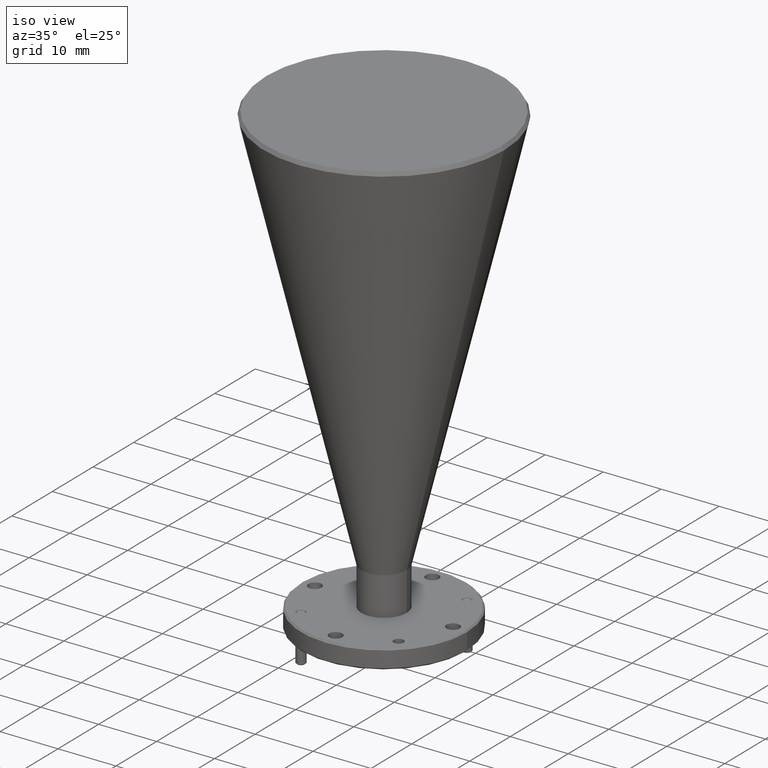
[diagram: clean part render]
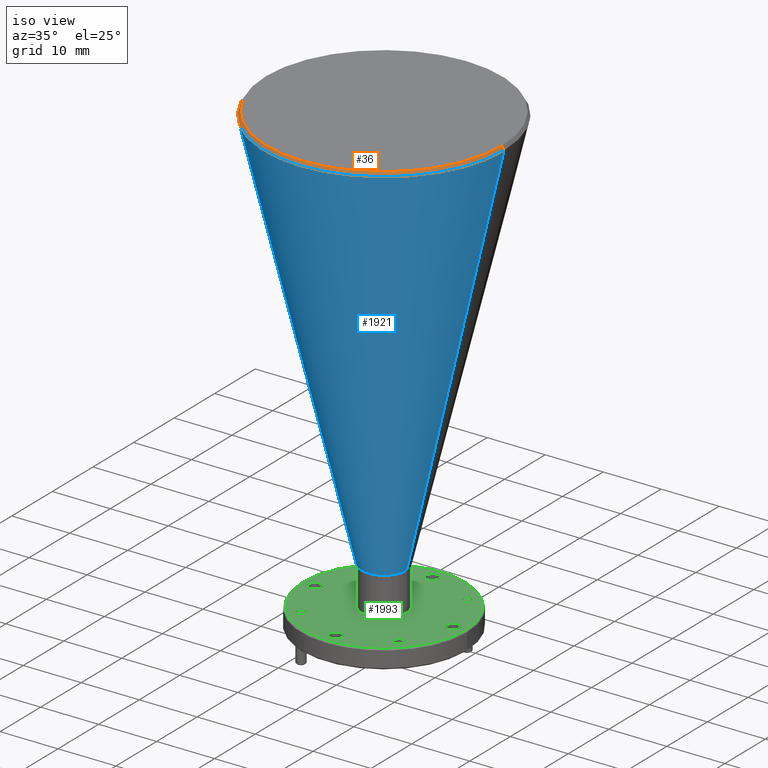
[diagram: same view with three faces highlighted in distinct colors, each labeled with its STEP entity id]
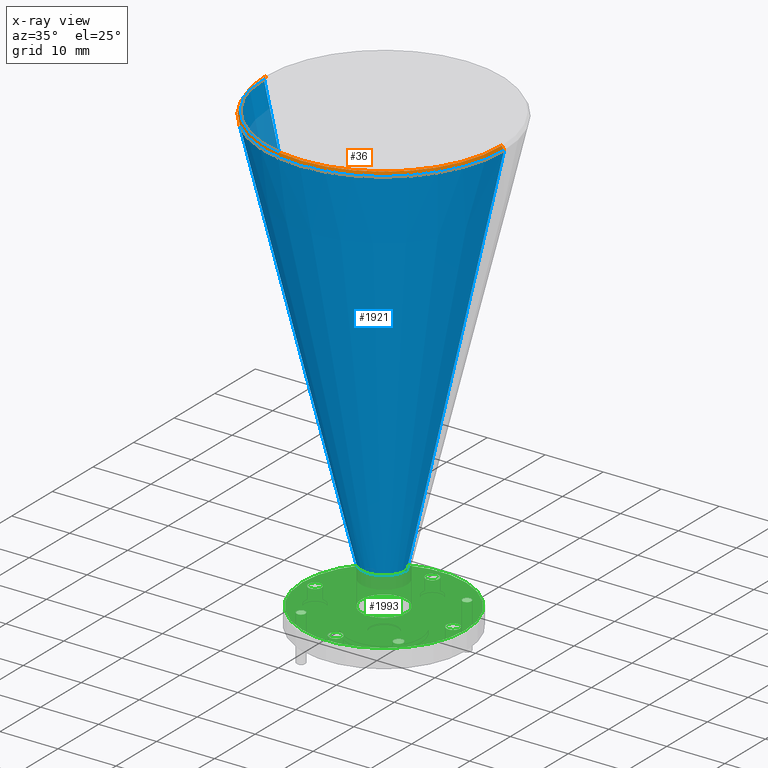
[diagram: x-ray of the same camera — body ghosted, the three highlighted faces saturated]
A machine part, iso view with three faces highlighted in distinct colors.
The next image is the same camera in x-ray (body ghosted, the three faces saturated) — at least one of them is partly hidden behind the body in this view.
Their STEP definitions:

[orange] entity #36 — the highlighted conical surface has half-angle 31.5 deg.
#17 = CARTESIAN_POINT ( 'NONE',  ( 1.289985497643306100, 1.133992482487602400, 3.175826876067312300 ) ) ;
#36 = ADVANCED_FACE ( 'NONE', ( #421 ), #1290, .T. ) ;
#39 = CARTESIAN_POINT ( 'NONE',  ( 1.275088771303725100, 1.133992482487602600, 3.200136124077253900 ) ) ;
#49 = VECTOR ( 'NONE', #1797, 39.37007874015748100 ) ;
#67 = EDGE_CURVE ( 'NONE', #1133, #147, #1218, .T. ) ;
#147 = VERTEX_POINT ( 'NONE', #1995 ) ;
#296 = ORIENTED_EDGE ( 'NONE', *, *, #67, .F. ) ;
#421 = FACE_OUTER_BOUND ( 'NONE', #435, .T. ) ;
#435 = EDGE_LOOP ( 'NONE', ( #608, #296, #511, #1625 ) ) ;
#511 = ORIENTED_EDGE ( 'NONE', *, *, #1276, .T. ) ;
#568 = CARTESIAN_POINT ( 'NONE',  ( -0.3254455078243183000, 1.133992482487602400, 3.200136124077253900 ) ) ;
#580 = AXIS2_PLACEMENT_3D ( 'NONE', #1400, #765, #1230 ) ;
#608 = ORIENTED_EDGE ( 'NONE', *, *, #758, .F. ) ;
#713 = LINE ( 'NONE', #39, #1470 ) ;
#758 = EDGE_CURVE ( 'NONE', #147, #1784, #713, .T. ) ;
#765 = DIRECTION ( 'NONE',  ( -0.0000000000000000000, -0.0000000000000000000, 1.000000000000000000 ) ) ;
#772 = CARTESIAN_POINT ( 'NONE',  ( 0.4748216317397033800, 1.133992482487602400, 3.175826876067312300 ) ) ;
#1129 = CARTESIAN_POINT ( 'NONE',  ( -0.3254455078243183000, 1.133992482487602400, 3.200136124077253900 ) ) ;
#1133 = VERTEX_POINT ( 'NONE', #568 ) ;
#1218 = CIRCLE ( 'NONE', #580, 0.8002671395640217300 ) ;
#1230 = DIRECTION ( 'NONE',  ( -1.000000000000000000, 0.0000000000000000000, 0.0000000000000000000 ) ) ;
#1276 = EDGE_CURVE ( 'NONE', #1133, #1287, #1577, .T. ) ;
#1281 = CARTESIAN_POINT ( 'NONE',  ( -0.3403422341638994200, 1.133992482487602600, 3.175826876067312300 ) ) ;
#1287 = VERTEX_POINT ( 'NONE', #1281 ) ;
#1290 = CONICAL_SURFACE ( 'NONE', #1816, 0.8002671395640217300, 0.5497787143782190100 ) ;
#1400 = CARTESIAN_POINT ( 'NONE',  ( 0.4748216317397033800, 1.133992482487602400, 3.200136124077253900 ) ) ;
#1409 = CIRCLE ( 'NONE', #1982, 0.8151638659036026800 ) ;
#1470 = VECTOR ( 'NONE', #1987, 39.37007874015748100 ) ;
#1548 = DIRECTION ( 'NONE',  ( -1.000000000000000000, 0.0000000000000000000, 0.0000000000000000000 ) ) ;
#1577 = LINE ( 'NONE', #1129, #49 ) ;
#1625 = ORIENTED_EDGE ( 'NONE', *, *, #1952, .F. ) ;
#1709 = CARTESIAN_POINT ( 'NONE',  ( 0.4748216317397033800, 1.133992482487602400, 3.200136124077253900 ) ) ;
#1784 = VERTEX_POINT ( 'NONE', #17 ) ;
#1797 = DIRECTION ( 'NONE',  ( -0.5224985647159533500, 0.0000000000000000000, -0.8526401643540895100 ) ) ;
#1816 = AXIS2_PLACEMENT_3D ( 'NONE', #1709, #2024, #1548 ) ;
#1894 = DIRECTION ( 'NONE',  ( -1.000000000000000000, 0.0000000000000000000, 0.0000000000000000000 ) ) ;
#1952 = EDGE_CURVE ( 'NONE', #1784, #1287, #1409, .T. ) ;
#1982 = AXIS2_PLACEMENT_3D ( 'NONE', #772, #2070, #1894 ) ;
#1987 = DIRECTION ( 'NONE',  ( 0.5224985647159533500, 6.398761948384784400E-017, -0.8526401643540895100 ) ) ;
#1995 = CARTESIAN_POINT ( 'NONE',  ( 1.275088771303725100, 1.133992482487602600, 3.200136124077253900 ) ) ;
#2024 = DIRECTION ( 'NONE',  ( 0.0000000000000000000, 0.0000000000000000000, -1.000000000000000000 ) ) ;
#2070 = DIRECTION ( 'NONE',  ( 0.0000000000000000000, 0.0000000000000000000, -1.000000000000000000 ) ) ;

[blue] entity #1921 — the highlighted conical surface has half-angle 13.5 deg.
#9 = CARTESIAN_POINT ( 'NONE',  ( 0.6288216317397034000, 1.133992482487602400, 0.4218811774268598800 ) ) ;
#17 = CARTESIAN_POINT ( 'NONE',  ( 1.289985497643306100, 1.133992482487602400, 3.175826876067312300 ) ) ;
#142 = VERTEX_POINT ( 'NONE', #997 ) ;
#178 = VECTOR ( 'NONE', #1915, 39.37007874015748100 ) ;
#237 = CARTESIAN_POINT ( 'NONE',  ( 0.4748216317397033800, 1.133992482487602400, 0.4218811774268598800 ) ) ;
#314 = CARTESIAN_POINT ( 'NONE',  ( 0.3208216317397033500, 1.133992482487602400, 0.4218811774268598800 ) ) ;
#446 = VERTEX_POINT ( 'NONE', #1148 ) ;
#462 = CIRCLE ( 'NONE', #1802, 0.1540000000000000500 ) ;
#529 = DIRECTION ( 'NONE',  ( 1.000000000000000000, 0.0000000000000000000, 0.0000000000000000000 ) ) ;
#540 = CARTESIAN_POINT ( 'NONE',  ( 0.4748216317397033800, 1.133992482487602400, 0.4218811774268598800 ) ) ;
#610 = FACE_OUTER_BOUND ( 'NONE', #1800, .T. ) ;
#772 = CARTESIAN_POINT ( 'NONE',  ( 0.4748216317397033800, 1.133992482487602400, 3.175826876067312300 ) ) ;
#793 = DIRECTION ( 'NONE',  ( -0.2334453638558986200, 2.858881176219154500E-017, 0.9723699203976782200 ) ) ;
#856 = LINE ( 'NONE', #9, #178 ) ;
#873 = ORIENTED_EDGE ( 'NONE', *, *, #1291, .T. ) ;
#876 = DIRECTION ( 'NONE',  ( -0.0000000000000000000, -0.0000000000000000000, 1.000000000000000000 ) ) ;
#971 = VECTOR ( 'NONE', #793, 39.37007874015748100 ) ;
#997 = CARTESIAN_POINT ( 'NONE',  ( 0.3208216317397033500, 1.133992482487602400, 0.4218811774268598800 ) ) ;
#1148 = CARTESIAN_POINT ( 'NONE',  ( 0.6288216317397034000, 1.133992482487602400, 0.4218811774268598800 ) ) ;
#1271 = ORIENTED_EDGE ( 'NONE', *, *, #1952, .T. ) ;
#1281 = CARTESIAN_POINT ( 'NONE',  ( -0.3403422341638994200, 1.133992482487602600, 3.175826876067312300 ) ) ;
#1287 = VERTEX_POINT ( 'NONE', #1281 ) ;
#1291 = EDGE_CURVE ( 'NONE', #446, #1784, #856, .T. ) ;
#1375 = DIRECTION ( 'NONE',  ( 1.000000000000000000, 0.0000000000000000000, 0.0000000000000000000 ) ) ;
#1409 = CIRCLE ( 'NONE', #1982, 0.8151638659036026800 ) ;
#1605 = ORIENTED_EDGE ( 'NONE', *, *, #2088, .F. ) ;
#1654 = DIRECTION ( 'NONE',  ( -0.0000000000000000000, -0.0000000000000000000, 1.000000000000000000 ) ) ;
#1676 = LINE ( 'NONE', #314, #971 ) ;
#1761 = EDGE_CURVE ( 'NONE', #142, #446, #462, .T. ) ;
#1784 = VERTEX_POINT ( 'NONE', #17 ) ;
#1800 = EDGE_LOOP ( 'NONE', ( #1605, #1844, #873, #1271 ) ) ;
#1802 = AXIS2_PLACEMENT_3D ( 'NONE', #540, #1654, #529 ) ;
#1844 = ORIENTED_EDGE ( 'NONE', *, *, #1761, .T. ) ;
#1894 = DIRECTION ( 'NONE',  ( -1.000000000000000000, 0.0000000000000000000, 0.0000000000000000000 ) ) ;
#1915 = DIRECTION ( 'NONE',  ( 0.2334453638558986200, 0.0000000000000000000, 0.9723699203976782200 ) ) ;
#1921 = ADVANCED_FACE ( 'NONE', ( #610 ), #1966, .T. ) ;
#1952 = EDGE_CURVE ( 'NONE', #1784, #1287, #1409, .T. ) ;
#1964 = AXIS2_PLACEMENT_3D ( 'NONE', #237, #876, #1375 ) ;
#1966 = CONICAL_SURFACE ( 'NONE', #1964, 0.1540000000000000500, 0.2356194490192275200 ) ;
#1982 = AXIS2_PLACEMENT_3D ( 'NONE', #772, #2070, #1894 ) ;
#2070 = DIRECTION ( 'NONE',  ( 0.0000000000000000000, 0.0000000000000000000, -1.000000000000000000 ) ) ;
#2088 = EDGE_CURVE ( 'NONE', #142, #1287, #1676, .T. ) ;

[green] entity #1993 — the highlighted planar face has unit normal (0, 0, -1).
#1 = CARTESIAN_POINT ( 'NONE',  ( 0.1098653280585092900, 1.465448786168796800, 0.1601361240772534200 ) ) ;
#2 = EDGE_LOOP ( 'NONE', ( #513, #1809 ) ) ;
#7 = CIRCLE ( 'NONE', #616, 0.02974999999999997100 ) ;
#8 = VERTEX_POINT ( 'NONE', #1863 ) ;
#12 = EDGE_LOOP ( 'NONE', ( #1984, #42 ) ) ;
#27 = CARTESIAN_POINT ( 'NONE',  ( 0.8990716317397036100, 1.133992482487602400, 0.1601361240772534200 ) ) ;
#31 = VERTEX_POINT ( 'NONE', #93 ) ;
#33 = DIRECTION ( 'NONE',  ( -1.000000000000000000, 0.0000000000000000000, 0.0000000000000000000 ) ) ;
#34 = VERTEX_POINT ( 'NONE', #556 ) ;
#42 = ORIENTED_EDGE ( 'NONE', *, *, #1063, .T. ) ;
#50 = CARTESIAN_POINT ( 'NONE',  ( 0.8062779354208975400, 0.8025361788064083700, 0.1601361240772534200 ) ) ;
#87 = EDGE_CURVE ( 'NONE', #767, #118, #1039, .T. ) ;
#93 = CARTESIAN_POINT ( 'NONE',  ( -0.07767836826029517200, 1.133992482487602400, 0.1601361240772534200 ) ) ;
#97 = EDGE_CURVE ( 'NONE', #1241, #188, #1958, .T. ) ;
#106 = DIRECTION ( 'NONE',  ( 0.0000000000000000000, 0.0000000000000000000, -1.000000000000000000 ) ) ;
#118 = VERTEX_POINT ( 'NONE', #494 ) ;
#132 = EDGE_CURVE ( 'NONE', #118, #767, #246, .T. ) ;
#135 = FACE_BOUND ( 'NONE', #12, .T. ) ;
#136 = AXIS2_PLACEMENT_3D ( 'NONE', #694, #817, #349 ) ;
#146 = CARTESIAN_POINT ( 'NONE',  ( 0.05057163173970308200, 1.133992482487602400, 0.1601361240772534200 ) ) ;
#152 = AXIS2_PLACEMENT_3D ( 'NONE', #735, #1718, #2023 ) ;
#182 = DIRECTION ( 'NONE',  ( -1.000000000000000000, 0.0000000000000000000, 0.0000000000000000000 ) ) ;
#185 = DIRECTION ( 'NONE',  ( -1.000000000000000000, 0.0000000000000000000, 0.0000000000000000000 ) ) ;
#188 = VERTEX_POINT ( 'NONE', #1387 ) ;
#189 = FACE_BOUND ( 'NONE', #1036, .T. ) ;
#217 = DIRECTION ( 'NONE',  ( -1.000000000000000000, 0.0000000000000000000, 0.0000000000000000000 ) ) ;
#229 = CIRCLE ( 'NONE', #1465, 0.02975000000000000200 ) ;
#246 = CIRCLE ( 'NONE', #675, 0.04449999999999975500 ) ;
#269 = DIRECTION ( 'NONE',  ( -1.000000000000000000, 0.0000000000000000000, 0.0000000000000000000 ) ) ;
#279 = CARTESIAN_POINT ( 'NONE',  ( 0.4748216317397033800, 1.602742482487602400, 0.1601361240772534200 ) ) ;
#299 = CARTESIAN_POINT ( 'NONE',  ( 0.4748216317397033800, 0.6652424824876024300, 0.1601361240772534200 ) ) ;
#300 = EDGE_CURVE ( 'NONE', #1032, #8, #7, .T. ) ;
#316 = EDGE_LOOP ( 'NONE', ( #1481, #1419 ) ) ;
#332 = FACE_BOUND ( 'NONE', #924, .T. ) ;
#340 = VERTEX_POINT ( 'NONE', #1087 ) ;
#349 = DIRECTION ( 'NONE',  ( -1.000000000000000000, 0.0000000000000000000, 0.0000000000000000000 ) ) ;
#352 = AXIS2_PLACEMENT_3D ( 'NONE', #869, #718, #1869 ) ;
#363 = EDGE_LOOP ( 'NONE', ( #1390, #1117 ) ) ;
#369 = EDGE_CURVE ( 'NONE', #340, #1384, #1388, .T. ) ;
#378 = FACE_BOUND ( 'NONE', #363, .T. ) ;
#389 = DIRECTION ( 'NONE',  ( -1.000000000000000000, 0.0000000000000000000, 0.0000000000000000000 ) ) ;
#409 = CIRCLE ( 'NONE', #1669, 0.03349999999999996000 ) ;
#434 = CIRCLE ( 'NONE', #136, 0.04449999999999972000 ) ;
#444 = AXIS2_PLACEMENT_3D ( 'NONE', #1851, #555, #2011 ) ;
#448 = CARTESIAN_POINT ( 'NONE',  ( 0.4303216317397036100, 1.602742482487602400, 0.1601361240772534200 ) ) ;
#458 = AXIS2_PLACEMENT_3D ( 'NONE', #299, #1745, #921 ) ;
#477 = DIRECTION ( 'NONE',  ( 0.0000000000000000000, 0.0000000000000000000, -1.000000000000000000 ) ) ;
#484 = CIRCLE ( 'NONE', #1623, 0.5524999999999985500 ) ;
#493 = DIRECTION ( 'NONE',  ( -0.0000000000000000000, -0.0000000000000000000, 1.000000000000000000 ) ) ;
#494 = CARTESIAN_POINT ( 'NONE',  ( 0.9880716317397031400, 1.133992482487602400, 0.1601361240772534200 ) ) ;
#507 = CARTESIAN_POINT ( 'NONE',  ( 0.3208216317397034100, 1.133992482487602400, 0.1601361240772534200 ) ) ;
#513 = ORIENTED_EDGE ( 'NONE', *, *, #1746, .T. ) ;
#522 = CARTESIAN_POINT ( 'NONE',  ( 0.8062779354208975400, 1.465448786168796400, 0.1601361240772534200 ) ) ;
#531 = EDGE_CURVE ( 'NONE', #1384, #340, #1931, .T. ) ;
#549 = AXIS2_PLACEMENT_3D ( 'NONE', #1946, #652, #820 ) ;
#555 = DIRECTION ( 'NONE',  ( -0.0000000000000000000, -0.0000000000000000000, 1.000000000000000000 ) ) ;
#556 = CARTESIAN_POINT ( 'NONE',  ( 1.027321631739701800, 1.133992482487602400, 0.1601361240772534200 ) ) ;
#562 = CIRCLE ( 'NONE', #444, 0.1540000000000000500 ) ;
#589 = CIRCLE ( 'NONE', #549, 0.04449999999999975500 ) ;
#604 = DIRECTION ( 'NONE',  ( 0.0000000000000000000, 0.0000000000000000000, -1.000000000000000000 ) ) ;
#616 = AXIS2_PLACEMENT_3D ( 'NONE', #879, #1708, #1887 ) ;
#622 = EDGE_LOOP ( 'NONE', ( #837, #1372 ) ) ;
#647 = CARTESIAN_POINT ( 'NONE',  ( 0.4748216317397033800, 1.133992482487602400, 0.1601361240772534200 ) ) ;
#652 = DIRECTION ( 'NONE',  ( 0.0000000000000000000, 0.0000000000000000000, -1.000000000000000000 ) ) ;
#653 = VERTEX_POINT ( 'NONE', #912 ) ;
#675 = AXIS2_PLACEMENT_3D ( 'NONE', #1146, #1309, #1482 ) ;
#693 = ORIENTED_EDGE ( 'NONE', *, *, #1504, .T. ) ;
#694 = CARTESIAN_POINT ( 'NONE',  ( 0.006071631739703355900, 1.133992482487602400, 0.1601361240772534200 ) ) ;
#696 = CARTESIAN_POINT ( 'NONE',  ( 0.5193216317397031400, 0.6652424824876024300, 0.1601361240772534200 ) ) ;
#712 = DIRECTION ( 'NONE',  ( 0.0000000000000000000, 0.0000000000000000000, -1.000000000000000000 ) ) ;
#718 = DIRECTION ( 'NONE',  ( -0.0000000000000000000, -0.0000000000000000000, 1.000000000000000000 ) ) ;
#729 = CARTESIAN_POINT ( 'NONE',  ( 0.1433653280585092700, 0.8025361788064084800, 0.1601361240772534200 ) ) ;
#733 = FACE_BOUND ( 'NONE', #2, .T. ) ;
#735 = CARTESIAN_POINT ( 'NONE',  ( 0.006071631739703355900, 1.133992482487602400, 0.1601361240772534200 ) ) ;
#739 = VERTEX_POINT ( 'NONE', #696 ) ;
#748 = CARTESIAN_POINT ( 'NONE',  ( 0.4748216317397033800, 1.602742482487602400, 0.1601361240772534200 ) ) ;
#760 = CARTESIAN_POINT ( 'NONE',  ( 0.8360279354208974800, 1.465448786168796400, 0.1601361240772534200 ) ) ;
#767 = VERTEX_POINT ( 'NONE', #27 ) ;
#770 = CARTESIAN_POINT ( 'NONE',  ( 0.4748216317397033800, 1.133992482487602400, 0.1601361240772534200 ) ) ;
#783 = AXIS2_PLACEMENT_3D ( 'NONE', #1571, #915, #1077 ) ;
#785 = AXIS2_PLACEMENT_3D ( 'NONE', #50, #991, #33 ) ;
#805 = EDGE_CURVE ( 'NONE', #1961, #1018, #1706, .T. ) ;
#817 = DIRECTION ( 'NONE',  ( 0.0000000000000000000, 0.0000000000000000000, -1.000000000000000000 ) ) ;
#820 = DIRECTION ( 'NONE',  ( -1.000000000000000000, 0.0000000000000000000, 0.0000000000000000000 ) ) ;
#822 = DIRECTION ( 'NONE',  ( -1.000000000000000000, 0.0000000000000000000, 0.0000000000000000000 ) ) ;
#832 = AXIS2_PLACEMENT_3D ( 'NONE', #2066, #477, #1257 ) ;
#837 = ORIENTED_EDGE ( 'NONE', *, *, #1167, .T. ) ;
#845 = CARTESIAN_POINT ( 'NONE',  ( -0.03842836826029636500, 1.133992482487602400, 0.1601361240772534200 ) ) ;
#851 = CIRCLE ( 'NONE', #878, 0.03349999999999993300 ) ;
#858 = EDGE_LOOP ( 'NONE', ( #1684, #1037 ) ) ;
#869 = CARTESIAN_POINT ( 'NONE',  ( 0.4748216317397033800, 1.133992482487602400, 0.1601361240772534200 ) ) ;
#874 = EDGE_CURVE ( 'NONE', #1766, #2057, #1950, .T. ) ;
#878 = AXIS2_PLACEMENT_3D ( 'NONE', #1506, #1301, #822 ) ;
#879 = CARTESIAN_POINT ( 'NONE',  ( 0.1433653280585092700, 0.8025361788064084800, 0.1601361240772534200 ) ) ;
#893 = EDGE_CURVE ( 'NONE', #2057, #1766, #562, .T. ) ;
#912 = CARTESIAN_POINT ( 'NONE',  ( 0.7727779354208975700, 0.8025361788064083700, 0.1601361240772534200 ) ) ;
#915 = DIRECTION ( 'NONE',  ( 0.0000000000000000000, 0.0000000000000000000, -1.000000000000000000 ) ) ;
#921 = DIRECTION ( 'NONE',  ( -1.000000000000000000, 0.0000000000000000000, 0.0000000000000000000 ) ) ;
#924 = EDGE_LOOP ( 'NONE', ( #1632, #1355 ) ) ;
#954 = CIRCLE ( 'NONE', #2105, 0.5524999999999985500 ) ;
#955 = AXIS2_PLACEMENT_3D ( 'NONE', #960, #1283, #185 ) ;
#960 = CARTESIAN_POINT ( 'NONE',  ( 0.1433653280585092700, 1.465448786168796800, 0.1601361240772534200 ) ) ;
#983 = VERTEX_POINT ( 'NONE', #1014 ) ;
#991 = DIRECTION ( 'NONE',  ( 0.0000000000000000000, 0.0000000000000000000, -1.000000000000000000 ) ) ;
#1011 = DIRECTION ( 'NONE',  ( 0.0000000000000000000, 0.0000000000000000000, -1.000000000000000000 ) ) ;
#1014 = CARTESIAN_POINT ( 'NONE',  ( 0.8397779354208974000, 0.8025361788064083700, 0.1601361240772534200 ) ) ;
#1018 = VERTEX_POINT ( 'NONE', #845 ) ;
#1032 = VERTEX_POINT ( 'NONE', #1985 ) ;
#1036 = EDGE_LOOP ( 'NONE', ( #1136, #693 ) ) ;
#1037 = ORIENTED_EDGE ( 'NONE', *, *, #1675, .T. ) ;
#1039 = CIRCLE ( 'NONE', #783, 0.04449999999999975500 ) ;
#1063 = EDGE_CURVE ( 'NONE', #983, #653, #1304, .T. ) ;
#1077 = DIRECTION ( 'NONE',  ( -1.000000000000000000, 0.0000000000000000000, 0.0000000000000000000 ) ) ;
#1087 = CARTESIAN_POINT ( 'NONE',  ( 0.5193216317397031400, 1.602742482487602400, 0.1601361240772534200 ) ) ;
#1092 = ORIENTED_EDGE ( 'NONE', *, *, #132, .T. ) ;
#1101 = DIRECTION ( 'NONE',  ( -1.000000000000000000, 0.0000000000000000000, 0.0000000000000000000 ) ) ;
#1117 = ORIENTED_EDGE ( 'NONE', *, *, #874, .F. ) ;
#1136 = ORIENTED_EDGE ( 'NONE', *, *, #1272, .T. ) ;
#1146 = CARTESIAN_POINT ( 'NONE',  ( 0.9435716317397033800, 1.133992482487602400, 0.1601361240772534200 ) ) ;
#1150 = FACE_BOUND ( 'NONE', #858, .T. ) ;
#1160 = VERTEX_POINT ( 'NONE', #1361 ) ;
#1167 = EDGE_CURVE ( 'NONE', #8, #1032, #1468, .T. ) ;
#1171 = DIRECTION ( 'NONE',  ( 0.0000000000000000000, 0.0000000000000000000, -1.000000000000000000 ) ) ;
#1220 = EDGE_CURVE ( 'NONE', #31, #34, #954, .T. ) ;
#1241 = VERTEX_POINT ( 'NONE', #1 ) ;
#1247 = CARTESIAN_POINT ( 'NONE',  ( 0.1433653280585092700, 1.465448786168796800, 0.1601361240772534200 ) ) ;
#1257 = DIRECTION ( 'NONE',  ( -1.000000000000000000, 0.0000000000000000000, -0.0000000000000000000 ) ) ;
#1272 = EDGE_CURVE ( 'NONE', #2083, #739, #589, .T. ) ;
#1283 = DIRECTION ( 'NONE',  ( 0.0000000000000000000, 0.0000000000000000000, -1.000000000000000000 ) ) ;
#1301 = DIRECTION ( 'NONE',  ( 0.0000000000000000000, 0.0000000000000000000, -1.000000000000000000 ) ) ;
#1304 = CIRCLE ( 'NONE', #785, 0.03349999999999993300 ) ;
#1309 = DIRECTION ( 'NONE',  ( 0.0000000000000000000, 0.0000000000000000000, -1.000000000000000000 ) ) ;
#1313 = VERTEX_POINT ( 'NONE', #760 ) ;
#1343 = DIRECTION ( 'NONE',  ( -1.000000000000000000, 0.0000000000000000000, 0.0000000000000000000 ) ) ;
#1355 = ORIENTED_EDGE ( 'NONE', *, *, #369, .T. ) ;
#1361 = CARTESIAN_POINT ( 'NONE',  ( 0.7765279354208974900, 1.465448786168796400, 0.1601361240772534200 ) ) ;
#1366 = AXIS2_PLACEMENT_3D ( 'NONE', #279, #1011, #389 ) ;
#1372 = ORIENTED_EDGE ( 'NONE', *, *, #300, .T. ) ;
#1384 = VERTEX_POINT ( 'NONE', #448 ) ;
#1387 = CARTESIAN_POINT ( 'NONE',  ( 0.1768653280585092100, 1.465448786168796800, 0.1601361240772534200 ) ) ;
#1388 = CIRCLE ( 'NONE', #1366, 0.04449999999999975500 ) ;
#1390 = ORIENTED_EDGE ( 'NONE', *, *, #893, .F. ) ;
#1406 = CARTESIAN_POINT ( 'NONE',  ( 0.6288216317397034000, 1.133992482487602400, 0.1601361240772534200 ) ) ;
#1418 = FACE_OUTER_BOUND ( 'NONE', #316, .T. ) ;
#1419 = ORIENTED_EDGE ( 'NONE', *, *, #1428, .T. ) ;
#1428 = EDGE_CURVE ( 'NONE', #34, #31, #484, .T. ) ;
#1431 = DIRECTION ( 'NONE',  ( -1.000000000000000000, 0.0000000000000000000, 0.0000000000000000000 ) ) ;
#1464 = FACE_BOUND ( 'NONE', #1886, .T. ) ;
#1465 = AXIS2_PLACEMENT_3D ( 'NONE', #522, #1171, #217 ) ;
#1468 = CIRCLE ( 'NONE', #1678, 0.02974999999999997100 ) ;
#1474 = ORIENTED_EDGE ( 'NONE', *, *, #1938, .T. ) ;
#1481 = ORIENTED_EDGE ( 'NONE', *, *, #1220, .T. ) ;
#1482 = DIRECTION ( 'NONE',  ( -1.000000000000000000, 0.0000000000000000000, 0.0000000000000000000 ) ) ;
#1488 = EDGE_CURVE ( 'NONE', #1160, #1313, #1897, .T. ) ;
#1504 = EDGE_CURVE ( 'NONE', #739, #2083, #1703, .T. ) ;
#1506 = CARTESIAN_POINT ( 'NONE',  ( 0.8062779354208975400, 0.8025361788064083700, 0.1601361240772534200 ) ) ;
#1571 = CARTESIAN_POINT ( 'NONE',  ( 0.9435716317397033800, 1.133992482487602400, 0.1601361240772534200 ) ) ;
#1623 = AXIS2_PLACEMENT_3D ( 'NONE', #770, #2069, #1101 ) ;
#1632 = ORIENTED_EDGE ( 'NONE', *, *, #531, .T. ) ;
#1669 = AXIS2_PLACEMENT_3D ( 'NONE', #1247, #604, #2078 ) ;
#1675 = EDGE_CURVE ( 'NONE', #1313, #1160, #229, .T. ) ;
#1678 = AXIS2_PLACEMENT_3D ( 'NONE', #729, #712, #1343 ) ;
#1684 = ORIENTED_EDGE ( 'NONE', *, *, #1488, .T. ) ;
#1703 = CIRCLE ( 'NONE', #458, 0.04449999999999975500 ) ;
#1706 = CIRCLE ( 'NONE', #152, 0.04449999999999972000 ) ;
#1708 = DIRECTION ( 'NONE',  ( 0.0000000000000000000, 0.0000000000000000000, -1.000000000000000000 ) ) ;
#1718 = DIRECTION ( 'NONE',  ( 0.0000000000000000000, 0.0000000000000000000, -1.000000000000000000 ) ) ;
#1729 = EDGE_CURVE ( 'NONE', #653, #983, #851, .T. ) ;
#1736 = AXIS2_PLACEMENT_3D ( 'NONE', #1916, #1895, #1431 ) ;
#1744 = PLANE ( 'NONE',  #832 ) ;
#1745 = DIRECTION ( 'NONE',  ( 0.0000000000000000000, 0.0000000000000000000, -1.000000000000000000 ) ) ;
#1746 = EDGE_CURVE ( 'NONE', #1018, #1961, #434, .T. ) ;
#1766 = VERTEX_POINT ( 'NONE', #507 ) ;
#1809 = ORIENTED_EDGE ( 'NONE', *, *, #805, .T. ) ;
#1833 = ORIENTED_EDGE ( 'NONE', *, *, #97, .T. ) ;
#1851 = CARTESIAN_POINT ( 'NONE',  ( 0.4748216317397033800, 1.133992482487602400, 0.1601361240772534200 ) ) ;
#1863 = CARTESIAN_POINT ( 'NONE',  ( 0.1136153280585093000, 0.8025361788064084800, 0.1601361240772534200 ) ) ;
#1864 = ORIENTED_EDGE ( 'NONE', *, *, #87, .T. ) ;
#1869 = DIRECTION ( 'NONE',  ( 1.000000000000000000, 0.0000000000000000000, 0.0000000000000000000 ) ) ;
#1886 = EDGE_LOOP ( 'NONE', ( #1833, #1474 ) ) ;
#1887 = DIRECTION ( 'NONE',  ( -1.000000000000000000, 0.0000000000000000000, 0.0000000000000000000 ) ) ;
#1895 = DIRECTION ( 'NONE',  ( 0.0000000000000000000, 0.0000000000000000000, -1.000000000000000000 ) ) ;
#1897 = CIRCLE ( 'NONE', #1736, 0.02975000000000000200 ) ;
#1912 = FACE_BOUND ( 'NONE', #2031, .T. ) ;
#1916 = CARTESIAN_POINT ( 'NONE',  ( 0.8062779354208975400, 1.465448786168796400, 0.1601361240772534200 ) ) ;
#1931 = CIRCLE ( 'NONE', #2021, 0.04449999999999975500 ) ;
#1938 = EDGE_CURVE ( 'NONE', #188, #1241, #409, .T. ) ;
#1946 = CARTESIAN_POINT ( 'NONE',  ( 0.4748216317397033800, 0.6652424824876024300, 0.1601361240772534200 ) ) ;
#1950 = CIRCLE ( 'NONE', #352, 0.1540000000000000500 ) ;
#1958 = CIRCLE ( 'NONE', #955, 0.03349999999999996000 ) ;
#1961 = VERTEX_POINT ( 'NONE', #146 ) ;
#1984 = ORIENTED_EDGE ( 'NONE', *, *, #1729, .T. ) ;
#1985 = CARTESIAN_POINT ( 'NONE',  ( 0.1731153280585092400, 0.8025361788064084800, 0.1601361240772534200 ) ) ;
#1993 = ADVANCED_FACE ( 'NONE', ( #1418, #1150, #2106, #1464, #135, #332, #733, #189, #1912, #378 ), #1744, .F. ) ;
#2011 = DIRECTION ( 'NONE',  ( 1.000000000000000000, 0.0000000000000000000, 0.0000000000000000000 ) ) ;
#2021 = AXIS2_PLACEMENT_3D ( 'NONE', #748, #106, #269 ) ;
#2023 = DIRECTION ( 'NONE',  ( -1.000000000000000000, 0.0000000000000000000, 0.0000000000000000000 ) ) ;
#2031 = EDGE_LOOP ( 'NONE', ( #1864, #1092 ) ) ;
#2049 = CARTESIAN_POINT ( 'NONE',  ( 0.4303216317397036100, 0.6652424824876024300, 0.1601361240772534200 ) ) ;
#2057 = VERTEX_POINT ( 'NONE', #1406 ) ;
#2066 = CARTESIAN_POINT ( 'NONE',  ( 0.4748216317397033800, 1.287992482487602600, 0.1601361240772534200 ) ) ;
#2069 = DIRECTION ( 'NONE',  ( -0.0000000000000000000, -0.0000000000000000000, 1.000000000000000000 ) ) ;
#2078 = DIRECTION ( 'NONE',  ( -1.000000000000000000, 0.0000000000000000000, 0.0000000000000000000 ) ) ;
#2083 = VERTEX_POINT ( 'NONE', #2049 ) ;
#2105 = AXIS2_PLACEMENT_3D ( 'NONE', #647, #493, #182 ) ;
#2106 = FACE_BOUND ( 'NONE', #622, .T. ) ;